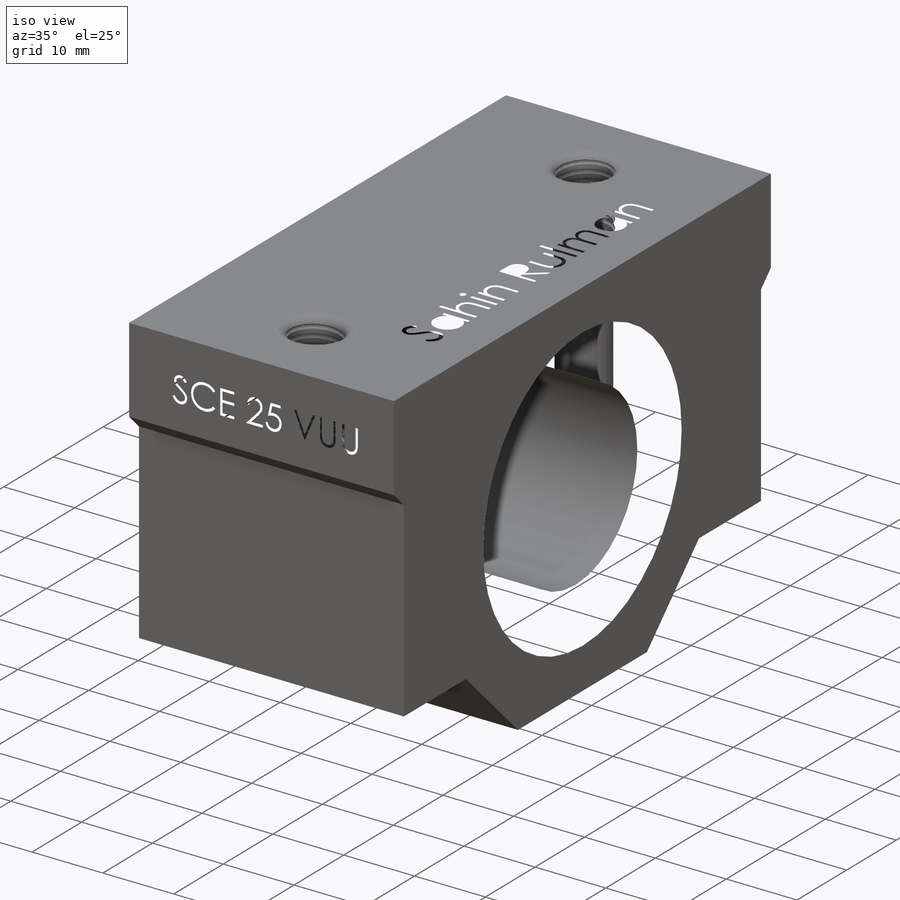
[diagram: iso view]
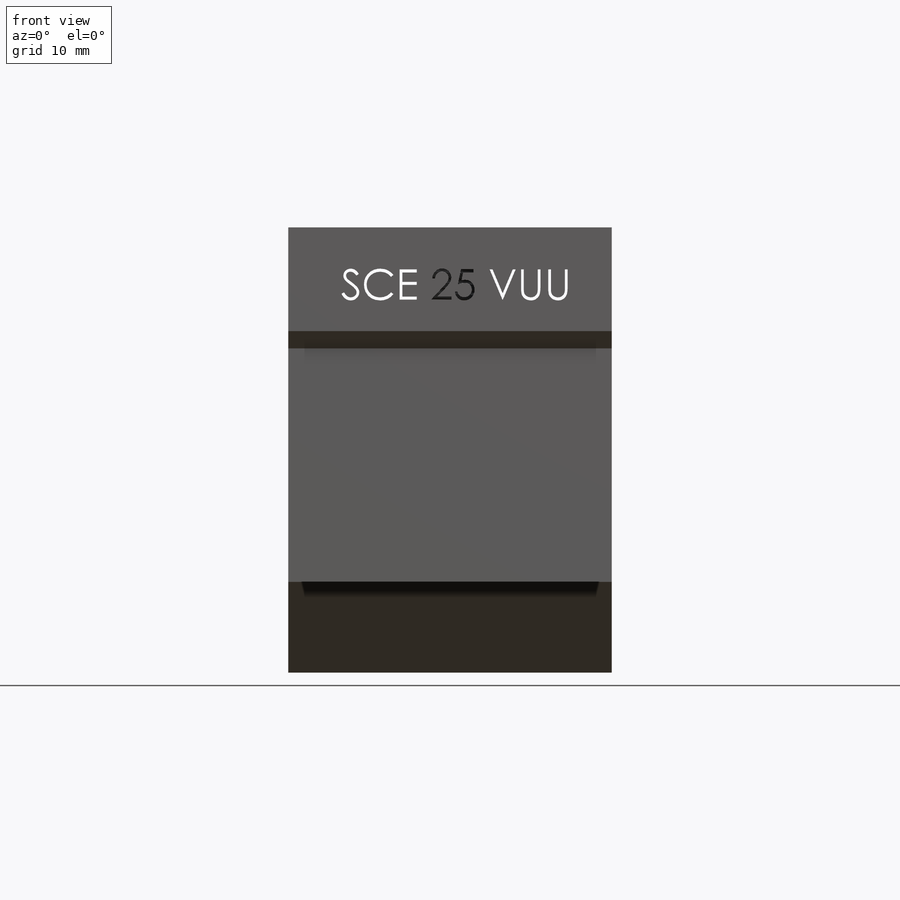
[diagram: front view]
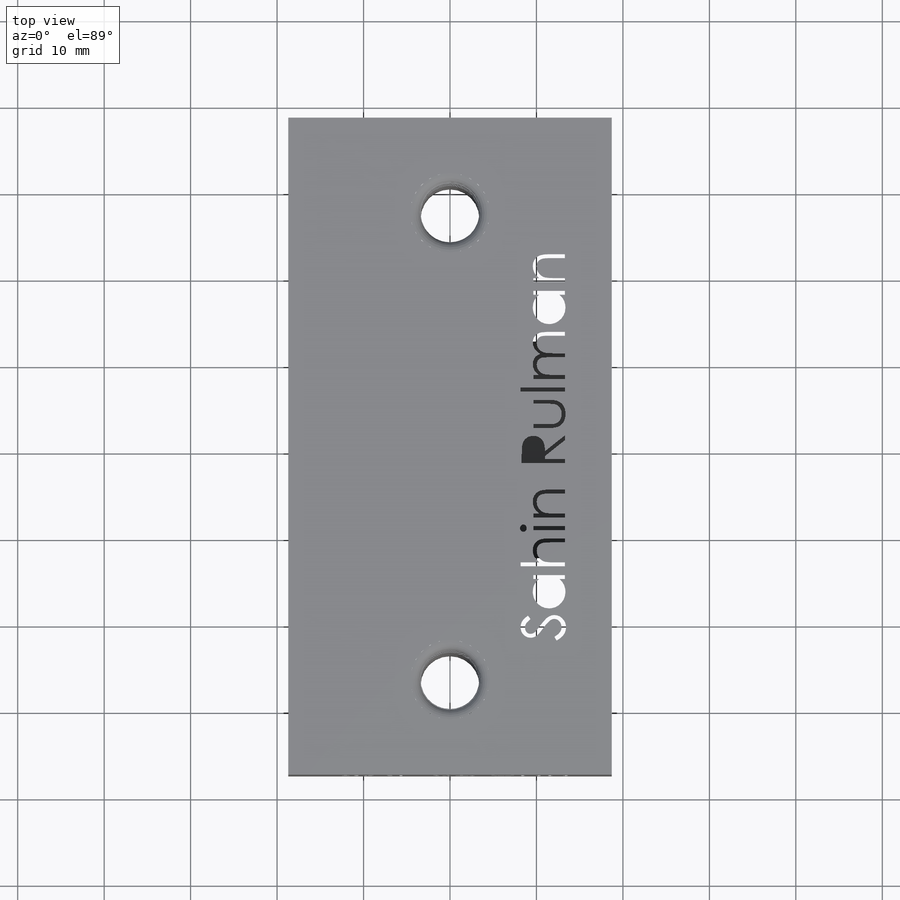
[diagram: top view]
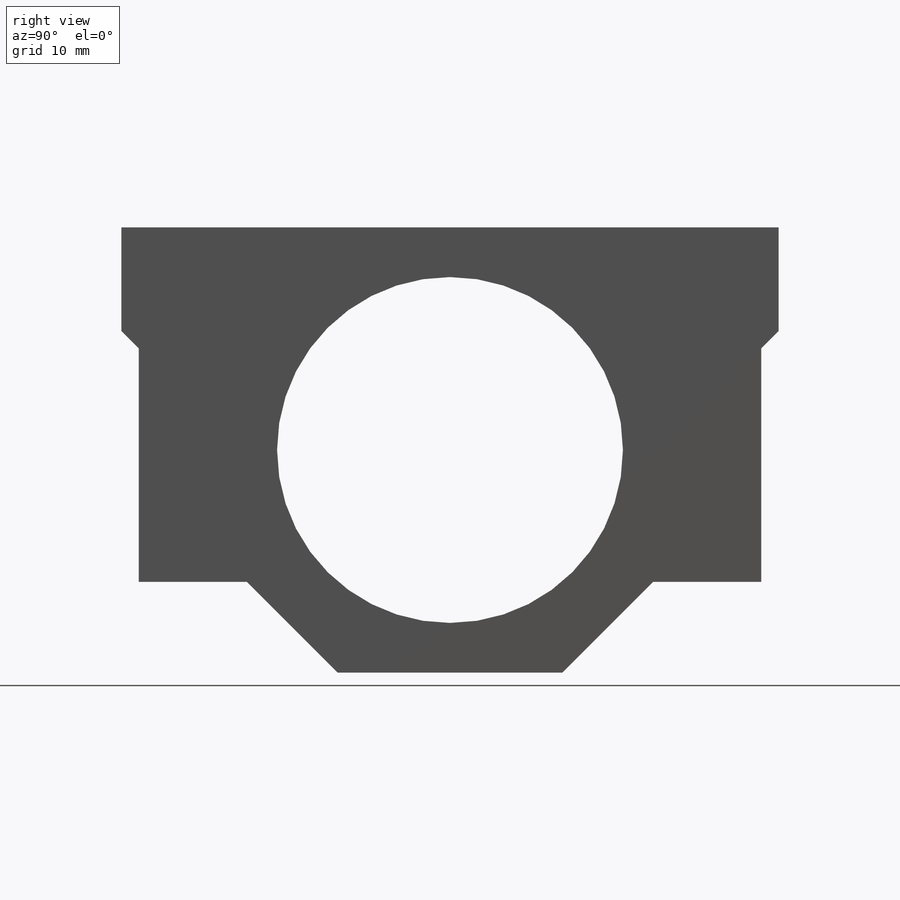
[diagram: right view]
SOLIDWORKS PART (.sldprt)
format: sldprt  version: not decoded by parser v0  size: 1,250,304 bytes
history: native  units: mm
features: sketch x8, cut_extrude x4, mirror x2, material x1, extrude x1, fillet x1, helix x1, plane x1, sweep x1 (+11 scaffold rows collapsed)
feature tree (31):
  scaffold x11  (default folders/planes/origin — collapsed)
  material  "Material <not specified>"
  sketch  "Sketch1"  dims[c1.D9=25.0mm c1.D1=76.0mm c1.D2=38.0mm c1.D3=2.0mm c1.D4=2.0mm c1.D5=41.0mm c1.D6=12.0mm c1.D7=51.5mm c1.D8=12.5mm c2.D9=10.5mm c2.D10=25.75mm]
  extrude  "Boss-Extrude1"  Depth=37.4mm
  sketch  "Sketch2"  dims[D2=6.8mm D1=27.0mm]
  cut_extrude  "Cut-Extrude1"  [1 undecoded]
  fillet  "Fillet1"  Radius=1.2mm
  sketch  "Sketch3"
  helix  "Helix/Spiral1"  Pitch=18mm
  plane  "Plane1"
  sketch  "Sketch4"  dims[D1=0.6mm]
  sweep  "Cut-Sweep1"
  mirror  "Mirror1"
  sketch  "Sketch6"
  cut_extrude  "Cut-Extrude4"  Depth=1mm
  sketch  "Sketch7"  dims[D1=40.0mm]
  sketch  "Sketch8"
  sketch  "Sketch9"
  cut_extrude  "Cut-Extrude5"  Depth=2mm
  cut_extrude  "Cut-Extrude6"  Depth=1mm
  mirror  "Mirror2"
decode coverage: 10 of 18 modeling features carry decoded parameters
note: 1 parameter value undecoded
note: suppression state not decoded; provenance and decode notes live in map.json
